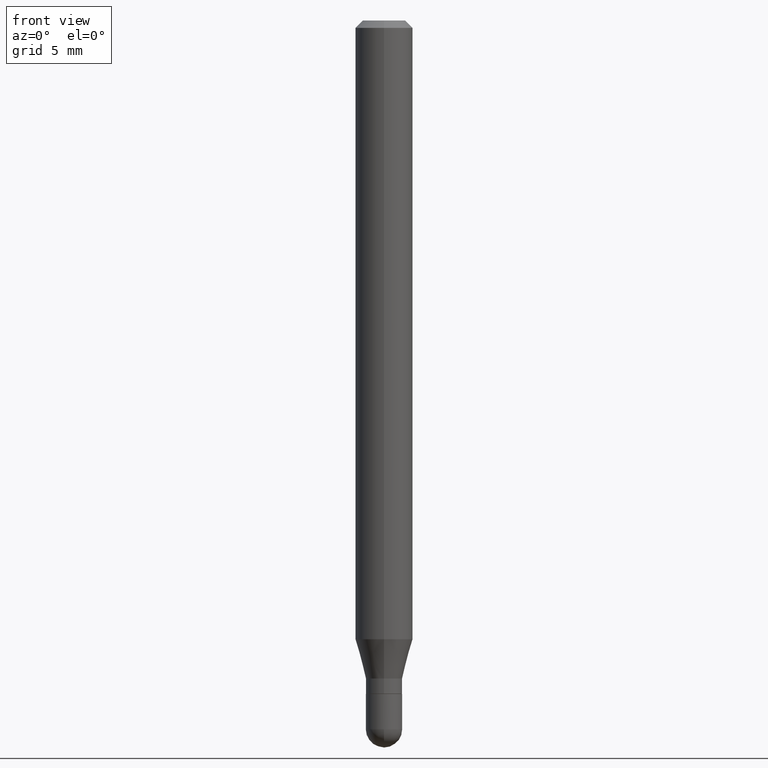
[diagram: clean part render]
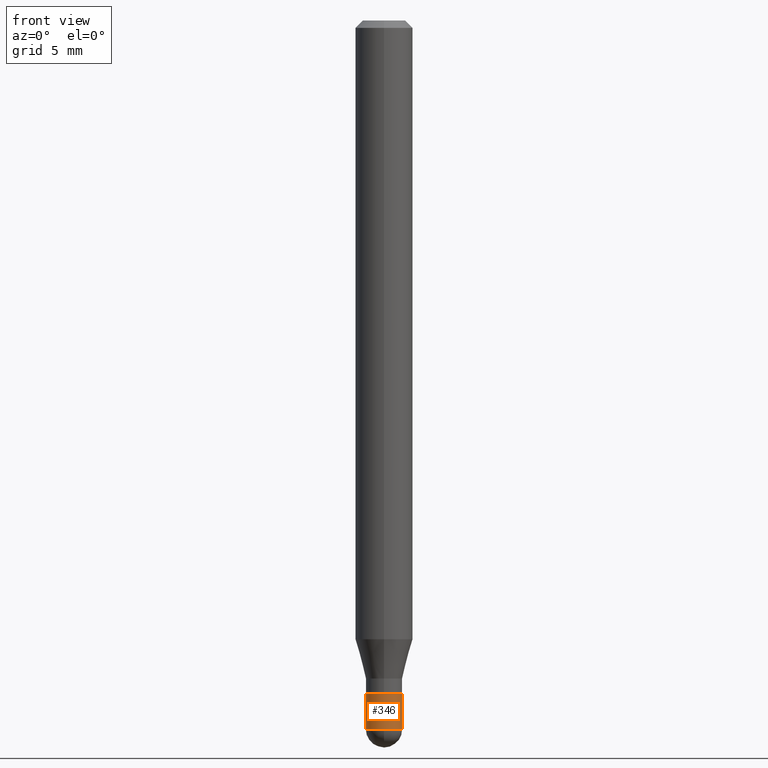
[diagram: same view with one face highlighted and labeled with its STEP entity id]
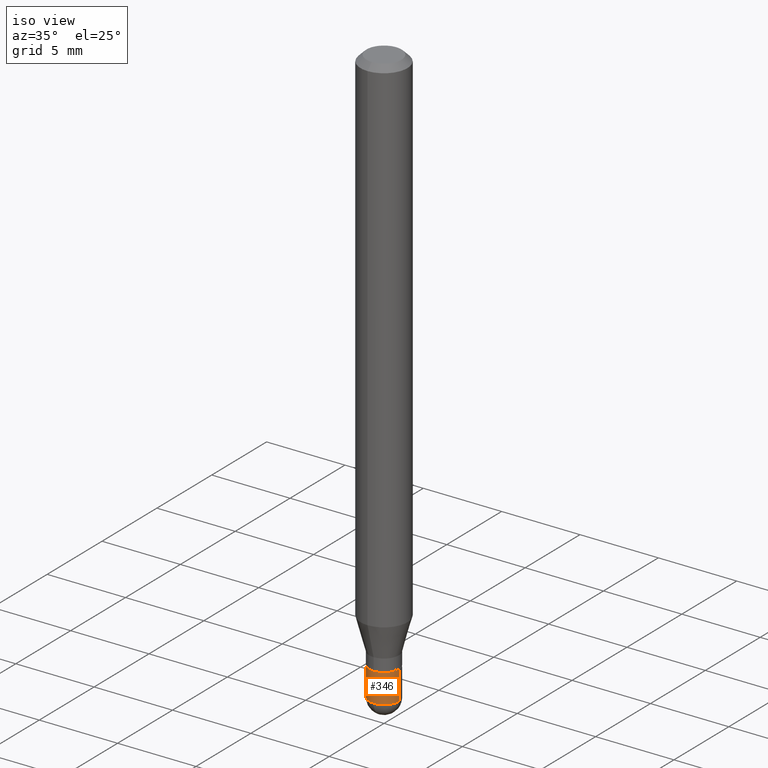
[diagram: same view with one face highlighted and labeled with its STEP entity id]
A machine part, front view. The second image highlights one B-rep face of the part: STEP entity #346.
A second angle (iso view) of the same face is appended — the face is thin or edge-on in the first view.
In plain terms, the highlighted cylindrical surface (edge-blend (fillet) strip) has radius 0.95 mm, axis along (-0, 0, 1).
Its self-contained STEP definition (entity closure, byte-faithful):
#5 = AXIS2_PLACEMENT_3D ( 'NONE', #306, #431, #347 ) ;
#15 = EDGE_CURVE ( 'NONE', #165, #488, #216, .T. ) ;
#20 = DIRECTION ( 'NONE',  ( -2.445468806185136597E-29, 3.491481338843145583E-15, 1.000000000000000000 ) ) ;
#29 = CARTESIAN_POINT ( 'NONE',  ( -2.611628041454307043E-16, -0.03740000000000509583, -1.458699999999999886 ) ) ;
#33 = CIRCLE ( 'NONE', #50, 0.03739999999999999575 ) ;
#50 = AXIS2_PLACEMENT_3D ( 'NONE', #175, #417, #171 ) ;
#53 = EDGE_CURVE ( 'NONE', #159, #165, #33, .T. ) ;
#65 = CARTESIAN_POINT ( 'NONE',  ( 3.389175218491980624E-29, -4.838843987502714496E-15, -1.385899999999999910 ) ) ;
#67 = AXIS2_PLACEMENT_3D ( 'NONE', #483, #20, #128 ) ;
#80 = CARTESIAN_POINT ( 'NONE',  ( -0.03740000000000000269, -4.700190925062328088E-15, -1.385899999999999910 ) ) ;
#87 = ORIENTED_EDGE ( 'NONE', *, *, #15, .T. ) ;
#107 = CARTESIAN_POINT ( 'NONE',  ( 0.03739999999999999575, -5.227096712382071878E-15, -1.458699999999999886 ) ) ;
#120 = ORIENTED_EDGE ( 'NONE', *, *, #179, .F. ) ;
#121 = LINE ( 'NONE', #164, #433 ) ;
#128 = DIRECTION ( 'NONE',  ( 1.000000000000000000, -6.982962677686276177E-15, 0.000000000000000000 ) ) ;
#145 = ORIENTED_EDGE ( 'NONE', *, *, #430, .T. ) ;
#159 = VERTEX_POINT ( 'NONE', #339 ) ;
#164 = CARTESIAN_POINT ( 'NONE',  ( 0.03739999999999999575, -2.611628041454663509E-16, 1.823690114147680082E-30 ) ) ;
#165 = VERTEX_POINT ( 'NONE', #29 ) ;
#171 = DIRECTION ( 'NONE',  ( 1.000000000000000000, -6.982962677686276177E-15, 0.000000000000000000 ) ) ;
#175 = CARTESIAN_POINT ( 'NONE',  ( 3.567205347582258439E-29, -5.093023828970496460E-15, -1.458699999999999886 ) ) ;
#179 = EDGE_CURVE ( 'NONE', #471, #284, #185, .T. ) ;
#180 = DIRECTION ( 'NONE',  ( -2.445468806185136597E-29, 3.491481338843145583E-15, 1.000000000000000000 ) ) ;
#185 = CIRCLE ( 'NONE', #303, 0.03740000000000000269 ) ;
#216 = CIRCLE ( 'NONE', #67, 0.03739999999999999575 ) ;
#240 = EDGE_CURVE ( 'NONE', #159, #471, #418, .T. ) ;
#264 = FACE_OUTER_BOUND ( 'NONE', #449, .T. ) ;
#284 = VERTEX_POINT ( 'NONE', #450 ) ;
#285 = ORIENTED_EDGE ( 'NONE', *, *, #53, .T. ) ;
#303 = AXIS2_PLACEMENT_3D ( 'NONE', #65, #180, #504 ) ;
#306 = CARTESIAN_POINT ( 'NONE',  ( 0.000000000000000000, 0.000000000000000000, 0.000000000000000000 ) ) ;
#339 = CARTESIAN_POINT ( 'NONE',  ( -0.03739999999999999575, -4.700190925062328088E-15, -1.458699999999999886 ) ) ;
#345 = CYLINDRICAL_SURFACE ( 'NONE', #5, 0.03739999999999999575 ) ;
#346 = ADVANCED_FACE ( 'NONE', ( #264 ), #345, .T. ) ;
#347 = DIRECTION ( 'NONE',  ( 1.000000000000000000, -6.982962677686266711E-15, 4.876176775795936353E-29 ) ) ;
#352 = VECTOR ( 'NONE', #491, 39.37007874015748143 ) ;
#417 = DIRECTION ( 'NONE',  ( -2.445468806185136597E-29, 3.491481338843145583E-15, 1.000000000000000000 ) ) ;
#418 = LINE ( 'NONE', #464, #352 ) ;
#430 = EDGE_CURVE ( 'NONE', #488, #284, #121, .T. ) ;
#431 = DIRECTION ( 'NONE',  ( -2.445468806185136597E-29, 3.491481338843145583E-15, 1.000000000000000000 ) ) ;
#433 = VECTOR ( 'NONE', #476, 39.37007874015748143 ) ;
#435 = ORIENTED_EDGE ( 'NONE', *, *, #240, .F. ) ;
#449 = EDGE_LOOP ( 'NONE', ( #435, #285, #87, #145, #120 ) ) ;
#450 = CARTESIAN_POINT ( 'NONE',  ( 0.03740000000000000269, -5.100006791648181685E-15, -1.385899999999999910 ) ) ;
#464 = CARTESIAN_POINT ( 'NONE',  ( -0.03739999999999999575, 2.657429831742774393E-16, -1.839681723755334690E-30 ) ) ;
#471 = VERTEX_POINT ( 'NONE', #80 ) ;
#476 = DIRECTION ( 'NONE',  ( -2.445468806185136877E-29, 3.491481338843145188E-15, 1.000000000000000000 ) ) ;
#483 = CARTESIAN_POINT ( 'NONE',  ( 3.567205347582258439E-29, -5.093023828970496460E-15, -1.458699999999999886 ) ) ;
#488 = VERTEX_POINT ( 'NONE', #107 ) ;
#491 = DIRECTION ( 'NONE',  ( -2.445468806185136877E-29, 3.491481338843145188E-15, 1.000000000000000000 ) ) ;
#504 = DIRECTION ( 'NONE',  ( 1.000000000000000000, -6.982962677686274599E-15, 0.000000000000000000 ) ) ;